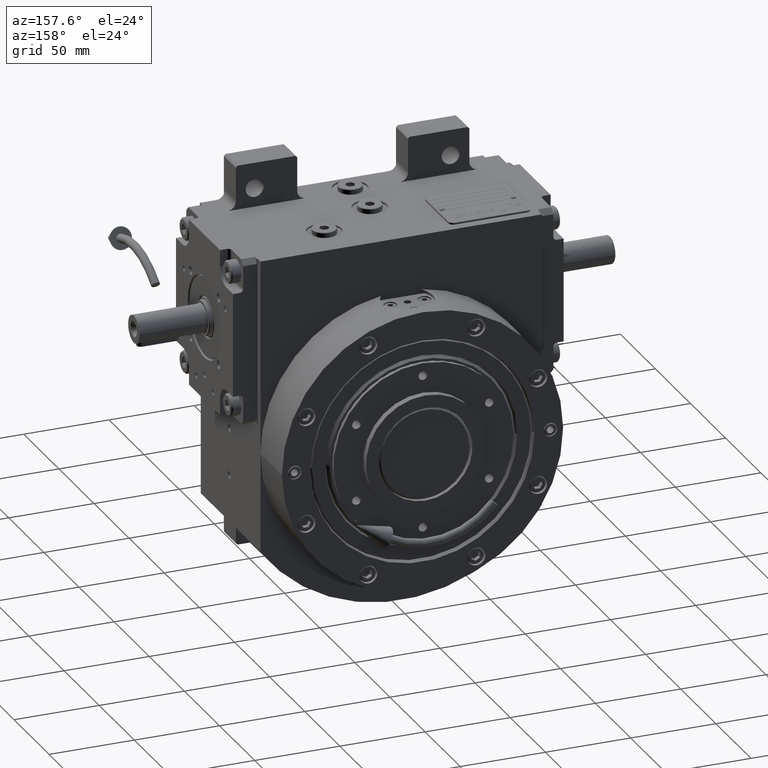
[diagram: clean part render]
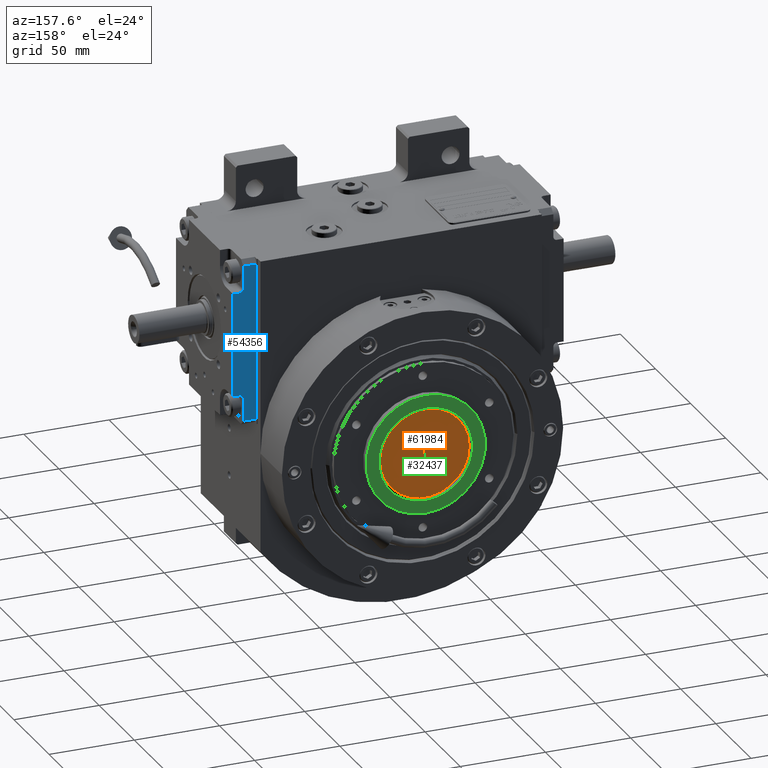
[diagram: same view with three faces highlighted in distinct colors, each labeled with its STEP entity id]
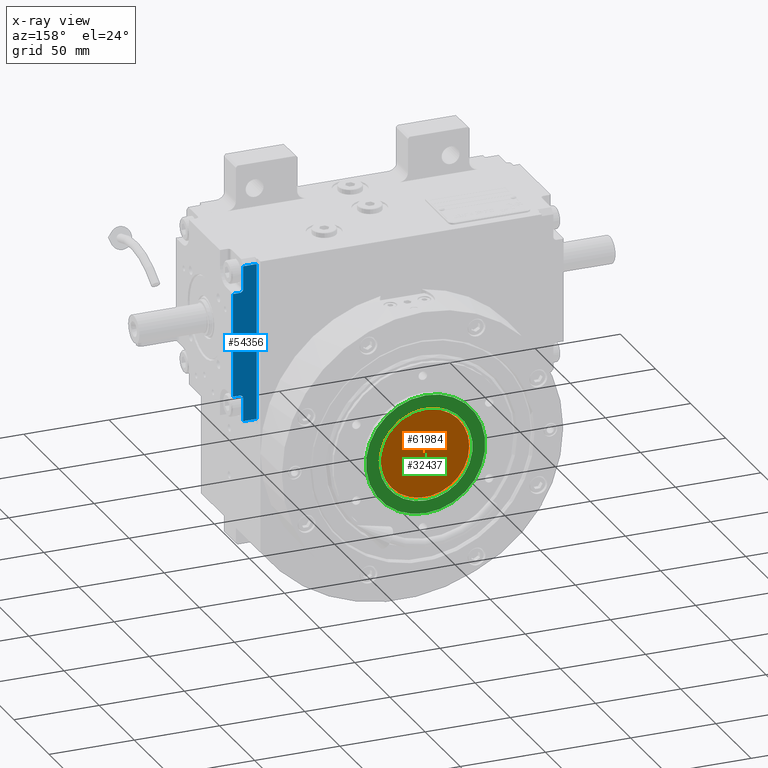
[diagram: x-ray of the same camera — body ghosted, the three highlighted faces saturated]
A machine part, auxiliary view with three faces highlighted in distinct colors.
The next image is the same camera in x-ray (body ghosted, the three faces saturated) — at least one of them is partly hidden behind the body in this view.
Their STEP definitions:

[orange] entity #61984 — the highlighted planar face has unit normal (-0, -1, 0).
#2302 = ORIENTED_EDGE ( 'NONE', *, *, #61053, .T. ) ;
#3832 = CARTESIAN_POINT ( 'NONE',  ( 1.776356839400249676E-15, 9.999999999999994671, -1.776356839400249676E-15 ) ) ;
#4260 = CIRCLE ( 'NONE', #8372, 26.00000000000000000 ) ;
#8133 = FACE_OUTER_BOUND ( 'NONE', #22780, .T. ) ;
#8372 = AXIS2_PLACEMENT_3D ( 'NONE', #3832, #14834, #29712 ) ;
#9725 = VERTEX_POINT ( 'NONE', #34405 ) ;
#12694 = DIRECTION ( 'NONE',  ( -1.000000000000000000, 1.836970198721029688E-16, 0.000000000000000000 ) ) ;
#14834 = DIRECTION ( 'NONE',  ( -2.049642507000289605E-16, -1.000000000000000000, -9.763650628182529445E-18 ) ) ;
#21666 = DIRECTION ( 'NONE',  ( 1.000000000000000000, -2.001604010742469762E-16, -6.832141690000958775E-17 ) ) ;
#22780 = EDGE_LOOP ( 'NONE', ( #36207, #2302 ) ) ;
#23398 = AXIS2_PLACEMENT_3D ( 'NONE', #26849, #56555, #21666 ) ;
#26849 = CARTESIAN_POINT ( 'NONE',  ( 1.776356839400249676E-15, 9.999999999999994671, 1.776356839400249676E-15 ) ) ;
#27571 = DIRECTION ( 'NONE',  ( -1.836970198721029688E-16, -1.000000000000000000, 0.000000000000000000 ) ) ;
#29712 = DIRECTION ( 'NONE',  ( 1.000000000000000000, -2.001604010742469762E-16, 6.832141690000958775E-17 ) ) ;
#33067 = CARTESIAN_POINT ( 'NONE',  ( 2.203923359967115520E-18, 9.999999999999994671, 0.000000000000000000 ) ) ;
#34405 = CARTESIAN_POINT ( 'NONE',  ( -26.00000000000000000, 9.999999999999994671, -2.122721118522079846E-15 ) ) ;
#36207 = ORIENTED_EDGE ( 'NONE', *, *, #48701, .F. ) ;
#38855 = CIRCLE ( 'NONE', #23398, 26.00000000000000000 ) ;
#46469 = VERTEX_POINT ( 'NONE', #50439 ) ;
#47014 = AXIS2_PLACEMENT_3D ( 'NONE', #33067, #27571, #12694 ) ;
#48701 = EDGE_CURVE ( 'NONE', #46469, #9725, #4260, .T. ) ;
#50439 = CARTESIAN_POINT ( 'NONE',  ( 26.00000000000000000, 9.999999999999994671, 1.061360559261039923E-15 ) ) ;
#56555 = DIRECTION ( 'NONE',  ( 2.049642507000289605E-16, 1.000000000000000000, -9.763650628182529445E-18 ) ) ;
#56965 = PLANE ( 'NONE',  #47014 ) ;
#61053 = EDGE_CURVE ( 'NONE', #46469, #9725, #38855, .T. ) ;
#61984 = ADVANCED_FACE ( 'NONE', ( #8133 ), #56965, .F. ) ;

[blue] entity #54356 — the highlighted planar face has unit normal (-0, 1, -0).
#692 = LINE ( 'NONE', #35645, #45763 ) ;
#1069 = EDGE_CURVE ( 'NONE', #8059, #55806, #692, .T. ) ;
#3151 = VECTOR ( 'NONE', #47595, 1000.000000000000000 ) ;
#3944 = CARTESIAN_POINT ( 'NONE',  ( -40.50000000000000000, -9.999999999999051425, -32.50000000000047606 ) ) ;
#5473 = LINE ( 'NONE', #44935, #37363 ) ;
#5608 = ORIENTED_EDGE ( 'NONE', *, *, #14244, .T. ) ;
#6251 = CARTESIAN_POINT ( 'NONE',  ( -40.49999999999976552, -13.99999999999905498, -30.50000000000047251 ) ) ;
#7819 = AXIS2_PLACEMENT_3D ( 'NONE', #3944, #29496, #53727 ) ;
#8059 = VERTEX_POINT ( 'NONE', #17274 ) ;
#9276 = ORIENTED_EDGE ( 'NONE', *, *, #35449, .T. ) ;
#9757 = CARTESIAN_POINT ( 'NONE',  ( -40.49999999999953104, -9.999999999999065636, 30.49999999999952749 ) ) ;
#10666 = CARTESIAN_POINT ( 'NONE',  ( -40.49999999999976552, -13.99999999999905498, -30.50000000000047251 ) ) ;
#10946 = CARTESIAN_POINT ( 'NONE',  ( -40.49999999999953104, -7.999999999999063860, 32.49999999999953104 ) ) ;
#12282 = CARTESIAN_POINT ( 'NONE',  ( -40.49999999999953104, -7.999999999999063860, 45.99999999999952394 ) ) ;
#14244 = EDGE_CURVE ( 'NONE', #28802, #62287, #37806, .T. ) ;
#17274 = CARTESIAN_POINT ( 'NONE',  ( -40.50000000000000000, 9.436895709313830594E-13, -46.00000000000046896 ) ) ;
#17733 = VERTEX_POINT ( 'NONE', #10946 ) ;
#17828 = ORIENTED_EDGE ( 'NONE', *, *, #22722, .T. ) ;
#17870 = CARTESIAN_POINT ( 'NONE',  ( -40.49999999999953104, 4.718447854656915297E-13, 45.99999999999952394 ) ) ;
#18015 = LINE ( 'NONE', #18666, #51624 ) ;
#18149 = ORIENTED_EDGE ( 'NONE', *, *, #18996, .F. ) ;
#18179 = LINE ( 'NONE', #17870, #3151 ) ;
#18197 = EDGE_LOOP ( 'NONE', ( #9276, #17828, #26349, #24464, #53879, #52012, #35534, #24741, #5608, #18149 ) ) ;
#18666 = CARTESIAN_POINT ( 'NONE',  ( -40.49999999999929656, -13.99999999999906919, 30.49999999999952749 ) ) ;
#18821 = VERTEX_POINT ( 'NONE', #9757 ) ;
#18996 = EDGE_CURVE ( 'NONE', #21957, #62287, #27229, .T. ) ;
#19035 = CARTESIAN_POINT ( 'NONE',  ( -40.50000000000000000, 9.436895709313830594E-13, -46.00000000000046896 ) ) ;
#19878 = CARTESIAN_POINT ( 'NONE',  ( -40.49999999999953104, -9.999999999999065636, 32.49999999999953104 ) ) ;
#20368 = DIRECTION ( 'NONE',  ( 7.549516567451105496E-15, -1.887379141862852893E-15, 1.000000000000000000 ) ) ;
#20736 = VERTEX_POINT ( 'NONE', #12282 ) ;
#20809 = EDGE_CURVE ( 'NONE', #8059, #34917, #22625, .T. ) ;
#21148 = DIRECTION ( 'NONE',  ( -6.938893903907222067E-15, 3.469446951953611033E-15, -1.000000000000000000 ) ) ;
#21432 = CARTESIAN_POINT ( 'NONE',  ( -40.50000000000000000, -7.999999999999049649, -32.50000000000047606 ) ) ;
#21957 = VERTEX_POINT ( 'NONE', #10666 ) ;
#22108 = LINE ( 'NONE', #6251, #23404 ) ;
#22625 = LINE ( 'NONE', #19035, #41123 ) ;
#22722 = EDGE_CURVE ( 'NONE', #37085, #18821, #18015, .T. ) ;
#23404 = VECTOR ( 'NONE', #26017, 1000.000000000000000 ) ;
#24464 = ORIENTED_EDGE ( 'NONE', *, *, #54527, .T. ) ;
#24741 = ORIENTED_EDGE ( 'NONE', *, *, #57217, .T. ) ;
#26017 = DIRECTION ( 'NONE',  ( 7.549516567451105496E-15, -1.887379141862852893E-15, 1.000000000000000000 ) ) ;
#26349 = ORIENTED_EDGE ( 'NONE', *, *, #35329, .T. ) ;
#26492 = CIRCLE ( 'NONE', #43017, 2.000000000000001776 ) ;
#26579 = CARTESIAN_POINT ( 'NONE',  ( -40.49999999999976552, -13.99999999999905498, -30.50000000000047251 ) ) ;
#27229 = LINE ( 'NONE', #26579, #52544 ) ;
#28409 = LINE ( 'NONE', #38745, #61171 ) ;
#28802 = VERTEX_POINT ( 'NONE', #21432 ) ;
#29496 = DIRECTION ( 'NONE',  ( 1.000000000000000000, -2.076117056049039260E-14, 7.549516567451102340E-15 ) ) ;
#29779 = CARTESIAN_POINT ( 'NONE',  ( -40.49999999999929656, -13.99999999999906919, 30.49999999999952749 ) ) ;
#30111 = AXIS2_PLACEMENT_3D ( 'NONE', #58528, #58852, #48831 ) ;
#32080 = DIRECTION ( 'NONE',  ( -2.076117056049039260E-14, 1.000000000000000000, -1.887379141862854077E-15 ) ) ;
#34007 = PLANE ( 'NONE',  #30111 ) ;
#34839 = CARTESIAN_POINT ( 'NONE',  ( -40.50000000000000000, -7.999999999999049649, -46.00000000000046896 ) ) ;
#34917 = VERTEX_POINT ( 'NONE', #34839 ) ;
#35329 = EDGE_CURVE ( 'NONE', #18821, #17733, #26492, .T. ) ;
#35449 = EDGE_CURVE ( 'NONE', #21957, #37085, #22108, .T. ) ;
#35534 = ORIENTED_EDGE ( 'NONE', *, *, #20809, .T. ) ;
#35645 = CARTESIAN_POINT ( 'NONE',  ( -40.50000000000000000, 9.436895709313830594E-13, -46.00000000000046896 ) ) ;
#37085 = VERTEX_POINT ( 'NONE', #29779 ) ;
#37363 = VECTOR ( 'NONE', #20368, 1000.000000000000000 ) ;
#37806 = CIRCLE ( 'NONE', #7819, 2.000000000000000000 ) ;
#38745 = CARTESIAN_POINT ( 'NONE',  ( -40.50000000000000000, -7.999999999999049649, -46.00000000000046896 ) ) ;
#39602 = DIRECTION ( 'NONE',  ( 1.000000000000000000, -2.076117056049039260E-14, 7.549516567451102340E-15 ) ) ;
#40765 = CARTESIAN_POINT ( 'NONE',  ( -40.50000000000000000, -9.999999999999051425, -30.50000000000047251 ) ) ;
#41123 = VECTOR ( 'NONE', #53607, 1000.000000000000000 ) ;
#43017 = AXIS2_PLACEMENT_3D ( 'NONE', #19878, #39602, #21148 ) ;
#43136 = CARTESIAN_POINT ( 'NONE',  ( -40.49999999999953104, 4.718447854656915297E-13, 45.99999999999952394 ) ) ;
#44935 = CARTESIAN_POINT ( 'NONE',  ( -40.49999999999953104, -7.999999999999063860, 32.49999999999953104 ) ) ;
#45763 = VECTOR ( 'NONE', #54705, 1000.000000000000000 ) ;
#47595 = DIRECTION ( 'NONE',  ( 2.076117056049039260E-14, -1.000000000000000000, 1.887379141862854077E-15 ) ) ;
#48258 = EDGE_CURVE ( 'NONE', #55806, #20736, #18179, .T. ) ;
#48831 = DIRECTION ( 'NONE',  ( 7.549516567451105496E-15, -1.887379141862852893E-15, 1.000000000000000000 ) ) ;
#51624 = VECTOR ( 'NONE', #58087, 1000.000000000000000 ) ;
#52012 = ORIENTED_EDGE ( 'NONE', *, *, #1069, .F. ) ;
#52544 = VECTOR ( 'NONE', #32080, 1000.000000000000000 ) ;
#53607 = DIRECTION ( 'NONE',  ( 2.076117056049039260E-14, -1.000000000000000000, 1.887379141862854077E-15 ) ) ;
#53727 = DIRECTION ( 'NONE',  ( -2.081668171172168513E-14, 1.000000000000000000, -3.469446951953614189E-15 ) ) ;
#53879 = ORIENTED_EDGE ( 'NONE', *, *, #48258, .F. ) ;
#54303 = FACE_OUTER_BOUND ( 'NONE', #18197, .T. ) ;
#54356 = ADVANCED_FACE ( 'NONE', ( #54303 ), #34007, .T. ) ;
#54527 = EDGE_CURVE ( 'NONE', #17733, #20736, #5473, .T. ) ;
#54705 = DIRECTION ( 'NONE',  ( 7.549516567451105496E-15, -1.887379141862852893E-15, 1.000000000000000000 ) ) ;
#55806 = VERTEX_POINT ( 'NONE', #43136 ) ;
#57217 = EDGE_CURVE ( 'NONE', #34917, #28802, #28409, .T. ) ;
#58087 = DIRECTION ( 'NONE',  ( -2.076117056049039260E-14, 1.000000000000000000, -1.887379141862854077E-15 ) ) ;
#58443 = DIRECTION ( 'NONE',  ( 7.549516567451105496E-15, -1.887379141862852893E-15, 1.000000000000000000 ) ) ;
#58528 = CARTESIAN_POINT ( 'NONE',  ( -40.50000000000023448, 9.436895709313830594E-13, -49.00000000000047606 ) ) ;
#58852 = DIRECTION ( 'NONE',  ( -1.000000000000000000, 2.076117056049036104E-14, 7.549516567451144939E-15 ) ) ;
#61171 = VECTOR ( 'NONE', #58443, 1000.000000000000000 ) ;
#62287 = VERTEX_POINT ( 'NONE', #40765 ) ;

[green] entity #32437 — the highlighted planar face has unit normal (-0, -1, -0).
#2622 = DIRECTION ( 'NONE',  ( 4.634557818173444357E-30, 1.000000000000000000, -1.097780068302966514E-32 ) ) ;
#3279 = CARTESIAN_POINT ( 'NONE',  ( 27.50000000000000000, 93.00000000000000000, -5.777789833161707559E-30 ) ) ;
#4135 = CIRCLE ( 'NONE', #8249, 27.50000000000000000 ) ;
#8249 = AXIS2_PLACEMENT_3D ( 'NONE', #22688, #17518, #47869 ) ;
#8481 = EDGE_LOOP ( 'NONE', ( #57559, #28952 ) ) ;
#10211 = CARTESIAN_POINT ( 'NONE',  ( 1.709243400810523343E-14, 93.00000000000000000, -1.034224380135945653E-28 ) ) ;
#11967 = DIRECTION ( 'NONE',  ( 1.000000000000000000, 0.000000000000000000, 6.459479416000872256E-17 ) ) ;
#16276 = VERTEX_POINT ( 'NONE', #43331 ) ;
#17518 = DIRECTION ( 'NONE',  ( -4.634557818173444357E-30, -1.000000000000000000, 1.097780068302966514E-32 ) ) ;
#18012 = CARTESIAN_POINT ( 'NONE',  ( 35.00000000000065370, 93.00000000000000000, 1.428754599007976995E-15 ) ) ;
#18315 = EDGE_LOOP ( 'NONE', ( #18594, #61679 ) ) ;
#18594 = ORIENTED_EDGE ( 'NONE', *, *, #56235, .F. ) ;
#19667 = VERTEX_POINT ( 'NONE', #29930 ) ;
#22688 = CARTESIAN_POINT ( 'NONE',  ( 1.598721155460286003E-14, 93.00000000000000000, 1.776356839399950106E-15 ) ) ;
#22905 = AXIS2_PLACEMENT_3D ( 'NONE', #23342, #63611, #28203 ) ;
#23342 = CARTESIAN_POINT ( 'NONE',  ( 1.776356839400212599E-14, 93.00000000000000000, -3.552713678800507240E-15 ) ) ;
#23865 = VERTEX_POINT ( 'NONE', #3279 ) ;
#27140 = VERTEX_POINT ( 'NONE', #18012 ) ;
#27418 = EDGE_CURVE ( 'NONE', #27140, #16276, #62875, .T. ) ;
#28203 = DIRECTION ( 'NONE',  ( 1.000000000000000000, 0.000000000000000000, 1.015061051085861937E-16 ) ) ;
#28952 = ORIENTED_EDGE ( 'NONE', *, *, #43634, .T. ) ;
#29086 = CIRCLE ( 'NONE', #22905, 35.00000000000000000 ) ;
#29930 = CARTESIAN_POINT ( 'NONE',  ( -27.50000000000000000, 93.00000000000000000, 1.122592899218273588E-15 ) ) ;
#32437 = ADVANCED_FACE ( 'NONE', ( #44183, #59350 ), #48717, .F. ) ;
#34193 = DIRECTION ( 'NONE',  ( -1.836909530733564655E-16, -1.000000000000000000, 2.307552586709396094E-30 ) ) ;
#36955 = CARTESIAN_POINT ( 'NONE',  ( 1.776356839400212599E-14, 93.00000000000000000, 3.552713678800451626E-15 ) ) ;
#43331 = CARTESIAN_POINT ( 'NONE',  ( -34.99999999999935341, 93.00000000000000000, -2.857509198005740609E-15 ) ) ;
#43634 = EDGE_CURVE ( 'NONE', #23865, #19667, #49314, .T. ) ;
#44183 = FACE_BOUND ( 'NONE', #8481, .T. ) ;
#45177 = AXIS2_PLACEMENT_3D ( 'NONE', #56246, #50438, #11967 ) ;
#47869 = DIRECTION ( 'NONE',  ( -1.000000000000000000, 0.000000000000000000, -6.459479416000872256E-17 ) ) ;
#48717 = PLANE ( 'NONE',  #59369 ) ;
#49314 = CIRCLE ( 'NONE', #45177, 27.50000000000000000 ) ;
#50438 = DIRECTION ( 'NONE',  ( -4.634557818173444357E-30, -1.000000000000000000, 1.097780068302966514E-32 ) ) ;
#52849 = EDGE_CURVE ( 'NONE', #19667, #23865, #4135, .T. ) ;
#56235 = EDGE_CURVE ( 'NONE', #27140, #16276, #29086, .T. ) ;
#56246 = CARTESIAN_POINT ( 'NONE',  ( 2.131628207280381337E-14, 93.00000000000000000, -1.776356839400453991E-15 ) ) ;
#56960 = DIRECTION ( 'NONE',  ( 1.000000000000000000, 0.000000000000000000, -1.015061051085861937E-16 ) ) ;
#57559 = ORIENTED_EDGE ( 'NONE', *, *, #52849, .T. ) ;
#59350 = FACE_OUTER_BOUND ( 'NONE', #18315, .T. ) ;
#59369 = AXIS2_PLACEMENT_3D ( 'NONE', #10211, #34193, #63879 ) ;
#60804 = AXIS2_PLACEMENT_3D ( 'NONE', #36955, #2622, #56960 ) ;
#61679 = ORIENTED_EDGE ( 'NONE', *, *, #27418, .T. ) ;
#62875 = CIRCLE ( 'NONE', #60804, 35.00000000000000000 ) ;
#63611 = DIRECTION ( 'NONE',  ( -4.634557818173444357E-30, -1.000000000000000000, 1.097780068302966514E-32 ) ) ;
#63879 = DIRECTION ( 'NONE',  ( -1.000000000000000000, 1.836909530733564655E-16, 0.000000000000000000 ) ) ;